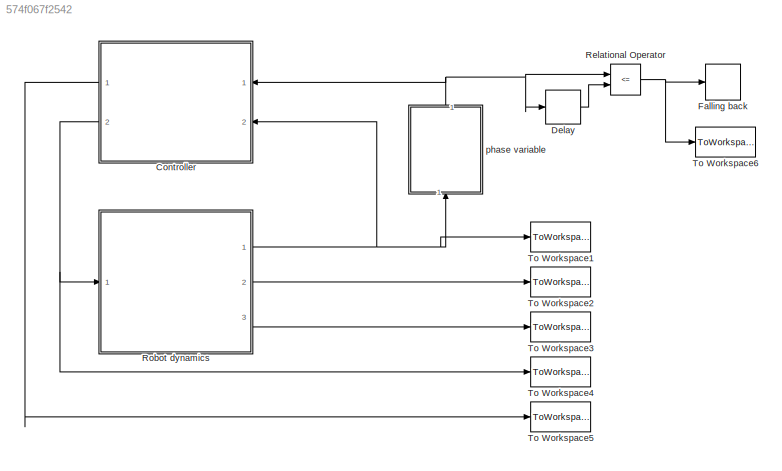
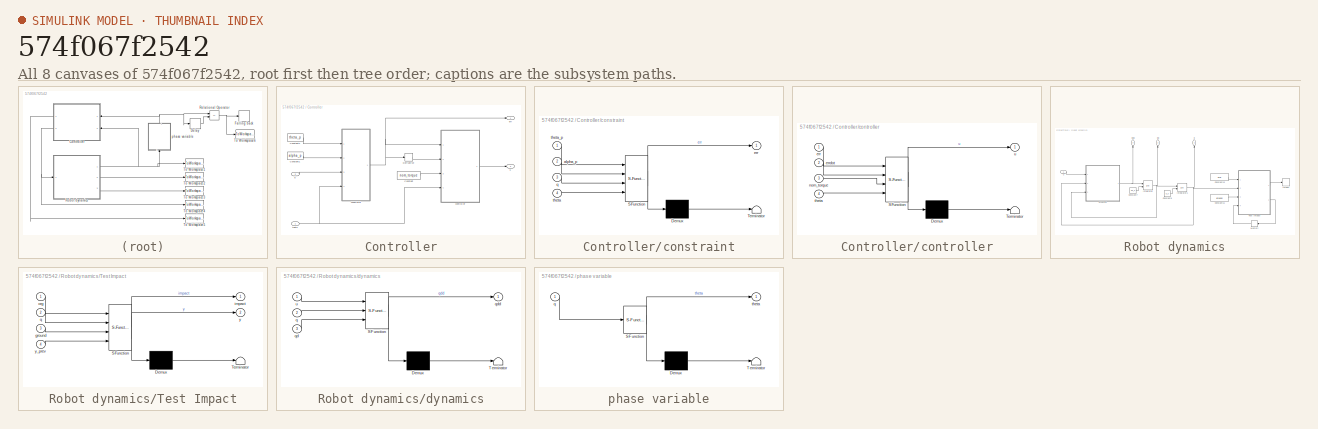
[diagram: thumbnail index - all 8 canvases of the model, root first then tree order]
MODEL slx_574f067f2542
KIND model
BLOCK [SubSystem] Controller
  FunctionWithSeparateData = off
  MaskHideContents = off
  MinAlgLoopOccurrences = off
  Opaque = off
  Ports = [2, 2]
  PropExecContextOutsideSubsystem = off
  RTWSystemCode = Auto
  RequestExecContextInheritance = off
BLOCK [Constant] Controller/Constant
  Value = nom_torque
BLOCK [Constant] Controller/Constant1
  Value = alpha_p
  VectorParams1D = off
BLOCK [Constant] Controller/Constant2
  Value = theta_p
  VectorParams1D = off
BLOCK [Derivative] Controller/Derivative
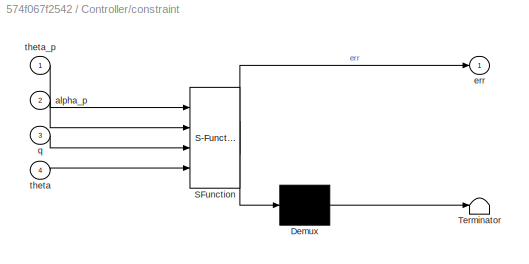
BLOCK [SubSystem] Controller/constraint
  ErrorFcn = Stateflow.Translate.translate
  FunctionWithSeparateData = off
  MaskHideContents = off
  MinAlgLoopOccurrences = off
  Opaque = off
  PermitHierarchicalResolution = ExplicitOnly
  Ports = [4, 1]
  PropExecContextOutsideSubsystem = off
  RTWSystemCode = Auto
  RequestExecContextInheritance = off
  SFBlockType = MATLAB Function
  TreatAsAtomicUnit = on
BLOCK [Demux] Controller/constraint/ Demux 
  Outputs = 1
  Ports = [1, 1]
BLOCK [S-Function] Controller/constraint/ SFunction 
  EnableBusSupport = on
  FunctionName = sf_sfun
  PortCounts = [4 2]
  Ports = [4, 2]
  Tag = Stateflow S-Function RobotSim 6
BLOCK [Terminator] Controller/constraint/ Terminator 
BLOCK [Inport] Controller/constraint/alpha_p
  IconDisplay = Port number
  Port = 2
BLOCK [Outport] Controller/constraint/err
  IconDisplay = Port number
BLOCK [Inport] Controller/constraint/q
  IconDisplay = Port number
  Port = 3
BLOCK [Inport] Controller/constraint/theta
  IconDisplay = Port number
  Port = 4
BLOCK [Inport] Controller/constraint/theta_p
  IconDisplay = Port number
BLOCK [SubSystem] Controller/controller
  ErrorFcn = Stateflow.Translate.translate
  FunctionWithSeparateData = off
  MaskHideContents = off
  MinAlgLoopOccurrences = off
  Opaque = off
  PermitHierarchicalResolution = ExplicitOnly
  Ports = [4, 1]
  PropExecContextOutsideSubsystem = off
  RTWSystemCode = Auto
  RequestExecContextInheritance = off
  SFBlockType = MATLAB Function
  TreatAsAtomicUnit = on
BLOCK [Demux] Controller/controller/ Demux 
  Outputs = 1
  Ports = [1, 1]
BLOCK [S-Function] Controller/controller/ SFunction 
  EnableBusSupport = on
  FunctionName = sf_sfun
  PortCounts = [4 2]
  Ports = [4, 2]
  Tag = Stateflow S-Function RobotSim 7
BLOCK [Terminator] Controller/controller/ Terminator 
BLOCK [Inport] Controller/controller/err
  IconDisplay = Port number
BLOCK [Inport] Controller/controller/errdot
  IconDisplay = Port number
  Port = 2
BLOCK [Inport] Controller/controller/nom_torque
  IconDisplay = Port number
  Port = 3
BLOCK [Inport] Controller/controller/theta
  IconDisplay = Port number
  Port = 4
BLOCK [Outport] Controller/controller/u
  IconDisplay = Port number
BLOCK [Outport] Controller/err
  IconDisplay = Port number
BLOCK [Inport] Controller/q
  IconDisplay = Port number
  Port = 2
BLOCK [Inport] Controller/theta
  IconDisplay = Port number
BLOCK [Outport] Controller/u
  IconDisplay = Port number
  Port = 2
BLOCK [Delay] Delay
  DelayLength = 50
  InitialCondition = -100
  InputPortMap = u0
  Ports = [1, 1]
  SampleTime = 0.01
BLOCK [Stop] Falling back
BLOCK [RelationalOperator] Relational Operator
  InputSameDT = off
  Operator = <=
  OutDataTypeStr = boolean
  Ports = [2, 1]
  ZeroCross = off
BLOCK [SubSystem] Robot dynamics
  FunctionWithSeparateData = off
  MaskHideContents = off
  MinAlgLoopOccurrences = off
  Opaque = off
  Ports = [1, 3]
  PropExecContextOutsideSubsystem = off
  RTWSystemCode = Auto
  RequestExecContextInheritance = off
BLOCK [Constant] Robot dynamics/Constant11
  Value = ground
  VectorParams1D = off
BLOCK [Constant] Robot dynamics/Constant13
  Value = org
  VectorParams1D = off
BLOCK [Constant] Robot dynamics/Constant7
  Value = qd_0
BLOCK [Constant] Robot dynamics/Constant9
  Value = q_0
BLOCK [Stop] Robot dynamics/Impact
BLOCK [Integrator] Robot dynamics/Integrator
  InitialConditionSource = external
  Ports = [2, 1]
BLOCK [Integrator] Robot dynamics/Integrator1
  InitialConditionSource = external
  Ports = [2, 1]
BLOCK [Memory] Robot dynamics/Memory
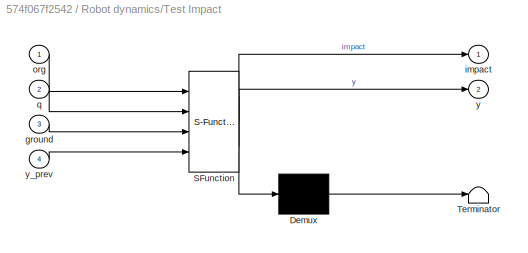
BLOCK [SubSystem] Robot dynamics/Test Impact
  ErrorFcn = Stateflow.Translate.translate
  FunctionWithSeparateData = off
  MaskHideContents = off
  MinAlgLoopOccurrences = off
  Opaque = off
  PermitHierarchicalResolution = ExplicitOnly
  Ports = [4, 2]
  PropExecContextOutsideSubsystem = off
  RTWSystemCode = Auto
  RequestExecContextInheritance = off
  SFBlockType = MATLAB Function
  TreatAsAtomicUnit = on
BLOCK [Demux] Robot dynamics/Test Impact/ Demux 
  Outputs = 1
  Ports = [1, 1]
BLOCK [S-Function] Robot dynamics/Test Impact/ SFunction 
  EnableBusSupport = on
  FunctionName = sf_sfun
  PortCounts = [4 3]
  Ports = [4, 3]
  Tag = Stateflow S-Function RobotSim 4
BLOCK [Terminator] Robot dynamics/Test Impact/ Terminator 
BLOCK [Inport] Robot dynamics/Test Impact/ground
  IconDisplay = Port number
  Port = 3
BLOCK [Outport] Robot dynamics/Test Impact/impact
  IconDisplay = Port number
BLOCK [Inport] Robot dynamics/Test Impact/org
  IconDisplay = Port number
BLOCK [Inport] Robot dynamics/Test Impact/q
  IconDisplay = Port number
  Port = 2
BLOCK [Outport] Robot dynamics/Test Impact/y
  IconDisplay = Port number
  Port = 2
BLOCK [Inport] Robot dynamics/Test Impact/y_prev
  IconDisplay = Port number
  Port = 4
BLOCK [SubSystem] Robot dynamics/dynamics
  ErrorFcn = Stateflow.Translate.translate
  FunctionWithSeparateData = off
  MaskHideContents = off
  MinAlgLoopOccurrences = off
  Opaque = off
  PermitHierarchicalResolution = ExplicitOnly
  Ports = [3, 1]
  PropExecContextOutsideSubsystem = off
  RTWSystemCode = Auto
  RequestExecContextInheritance = off
  SFBlockType = MATLAB Function
  TreatAsAtomicUnit = on
BLOCK [Demux] Robot dynamics/dynamics/ Demux 
  Outputs = 1
  Ports = [1, 1]
BLOCK [S-Function] Robot dynamics/dynamics/ SFunction 
  EnableBusSupport = on
  FunctionName = sf_sfun
  PortCounts = [3 2]
  Ports = [3, 2]
  Tag = Stateflow S-Function RobotSim 2
BLOCK [Terminator] Robot dynamics/dynamics/ Terminator 
BLOCK [Inport] Robot dynamics/dynamics/q
  IconDisplay = Port number
  Port = 2
BLOCK [Inport] Robot dynamics/dynamics/qd
  IconDisplay = Port number
  Port = 3
BLOCK [Outport] Robot dynamics/dynamics/qdd
  IconDisplay = Port number
BLOCK [Inport] Robot dynamics/dynamics/u
  IconDisplay = Port number
BLOCK [Outport] Robot dynamics/q
  IconDisplay = Port number
BLOCK [Outport] Robot dynamics/qd
  IconDisplay = Port number
  Port = 2
BLOCK [Outport] Robot dynamics/qdd
  IconDisplay = Port number
  Port = 3
BLOCK [Inport] Robot dynamics/u
  IconDisplay = Port number
BLOCK [ToWorkspace] To Workspace1
  MaxDataPoints = inf
  Ports = [1]
  SampleTime = -1
  VariableName = q
BLOCK [ToWorkspace] To Workspace2
  MaxDataPoints = inf
  Ports = [1]
  SampleTime = -1
  VariableName = qd
BLOCK [ToWorkspace] To Workspace3
  MaxDataPoints = inf
  Ports = [1]
  SampleTime = -1
  VariableName = qdd
BLOCK [ToWorkspace] To Workspace4
  MaxDataPoints = inf
  Ports = [1]
  SampleTime = -1
  VariableName = u
BLOCK [ToWorkspace] To Workspace5
  MaxDataPoints = inf
  Ports = [1]
  SampleTime = -1
  VariableName = err
BLOCK [ToWorkspace] To Workspace6
  MaxDataPoints = 1
  Ports = [1]
  SampleTime = -1
  VariableName = fall
BLOCK [SubSystem] phase variable
  ErrorFcn = Stateflow.Translate.translate
  FunctionWithSeparateData = off
  MaskHideContents = off
  MinAlgLoopOccurrences = off
  Opaque = off
  PermitHierarchicalResolution = ExplicitOnly
  Ports = [1, 1]
  PropExecContextOutsideSubsystem = off
  RTWSystemCode = Auto
  RequestExecContextInheritance = off
  SFBlockType = MATLAB Function
  TreatAsAtomicUnit = on
BLOCK [Demux] phase variable/ Demux 
  Outputs = 1
  Ports = [1, 1]
BLOCK [S-Function] phase variable/ SFunction 
  EnableBusSupport = on
  FunctionName = sf_sfun
  PortCounts = [1 2]
  Ports = [1, 2]
  Tag = Stateflow S-Function RobotSim 5
BLOCK [Terminator] phase variable/ Terminator 
BLOCK [Inport] phase variable/q
  IconDisplay = Port number
BLOCK [Outport] phase variable/theta
  IconDisplay = Port number
LINE Controller/Constant1:1 -> Controller/constraint:2
LINE Controller/Constant2:1 -> Controller/constraint:1
LINE Controller/Constant:1 -> Controller/controller:3
LINE Controller/Derivative:1 -> Controller/controller:2
NET Controller/constraint:1 -> Controller/Derivative:1, Controller/controller:1, Controller/err:1
LINE Controller/controller:1 -> Controller/u:1
LINE Controller/q:1 -> Controller/constraint:3
NET Controller/theta:1 -> Controller/constraint:4, Controller/controller:4
LINE Controller:1 -> To Workspace5:1
NET Controller:2 -> Robot dynamics:1, To Workspace4:1
LINE Delay:1 -> Relational Operator:2
NET Relational Operator:1 -> Falling back:1, To Workspace6:1
LINE Robot dynamics/Constant11:1 -> Robot dynamics/Test Impact:3
LINE Robot dynamics/Constant13:1 -> Robot dynamics/Test Impact:1
LINE Robot dynamics/Constant7:1 -> Robot dynamics/Integrator:2
LINE Robot dynamics/Constant9:1 -> Robot dynamics/Integrator1:2
NET Robot dynamics/Integrator1:1 -> Robot dynamics/Test Impact:2, Robot dynamics/dynamics:2, Robot dynamics/q:1
NET Robot dynamics/Integrator:1 -> Robot dynamics/Integrator1:1, Robot dynamics/dynamics:3, Robot dynamics/qd:1
LINE Robot dynamics/Memory:1 -> Robot dynamics/Test Impact:4
LINE Robot dynamics/Test Impact:1 -> Robot dynamics/Impact:1
LINE Robot dynamics/Test Impact:2 -> Robot dynamics/Memory:1
NET Robot dynamics/dynamics:1 -> Robot dynamics/Integrator:1, Robot dynamics/qdd:1
LINE Robot dynamics/u:1 -> Robot dynamics/dynamics:1
NET Robot dynamics:1 -> Controller:2, To Workspace1:1, phase variable:1
LINE Robot dynamics:2 -> To Workspace2:1
LINE Robot dynamics:3 -> To Workspace3:1
NET phase variable:1 -> Controller:1, Delay:1, Relational Operator:1
note: NET lines group one-source signal fan-out (src -> all destinations, sorted); 1:1 wires keep LINE
